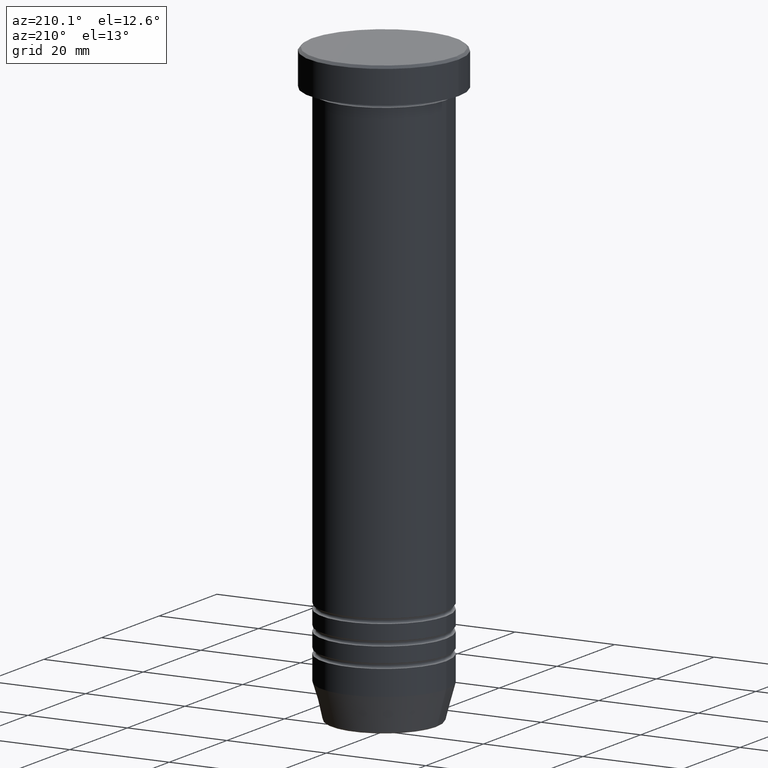
[diagram: clean part render]
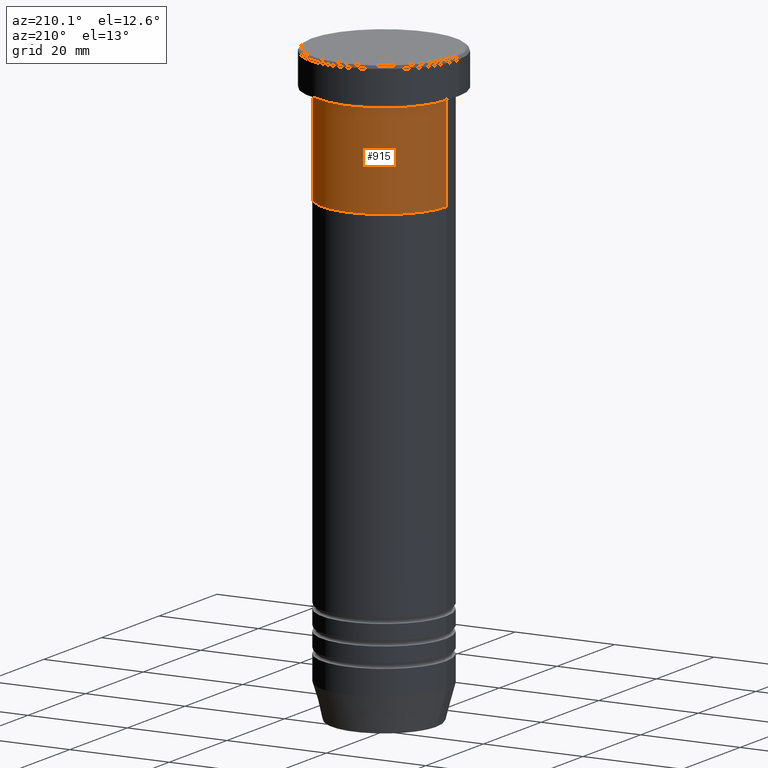
[diagram: same view with one face highlighted and labeled with its STEP entity id]
A machine part, auxiliary view. The second image highlights one B-rep face of the part: STEP entity #915.
In plain terms, the highlighted cylindrical surface (partial cylindrical patch) has radius 12.5 mm, axis along (-0, -0, 1).
Its self-contained STEP definition (entity closure, byte-faithful):
#12 = VECTOR ( 'NONE', #348, 1000.000000000000000 ) ;
#21 = LINE ( 'NONE', #676, #12 ) ;
#25 = CARTESIAN_POINT ( 'NONE',  ( 0.000000000000000000, 0.000000000000000000, -27.00000000000000000 ) ) ;
#51 = DIRECTION ( 'NONE',  ( -0.000000000000000000, -0.000000000000000000, 1.000000000000000000 ) ) ;
#57 = CARTESIAN_POINT ( 'NONE',  ( -12.50000000000000000, 1.530808498934191521E-15, 0.000000000000000000 ) ) ;
#221 = DIRECTION ( 'NONE',  ( 1.000000000000000000, 0.000000000000000000, 0.000000000000000000 ) ) ;
#236 = AXIS2_PLACEMENT_3D ( 'NONE', #773, #284, #939 ) ;
#237 = EDGE_CURVE ( 'NONE', #846, #979, #369, .T. ) ;
#258 = DIRECTION ( 'NONE',  ( -0.000000000000000000, -0.000000000000000000, 1.000000000000000000 ) ) ;
#284 = DIRECTION ( 'NONE',  ( -0.000000000000000000, -0.000000000000000000, 1.000000000000000000 ) ) ;
#308 = CIRCLE ( 'NONE', #970, 12.50000000000000000 ) ;
#332 = CIRCLE ( 'NONE', #934, 12.50000000000000000 ) ;
#338 = DIRECTION ( 'NONE',  ( 1.000000000000000000, 0.000000000000000000, 0.000000000000000000 ) ) ;
#348 = DIRECTION ( 'NONE',  ( -0.000000000000000000, -0.000000000000000000, 1.000000000000000000 ) ) ;
#369 = LINE ( 'NONE', #57, #966 ) ;
#401 = ORIENTED_EDGE ( 'NONE', *, *, #577, .F. ) ;
#458 = EDGE_LOOP ( 'NONE', ( #867, #851, #545, #401 ) ) ;
#545 = ORIENTED_EDGE ( 'NONE', *, *, #987, .F. ) ;
#548 = CYLINDRICAL_SURFACE ( 'NONE', #236, 12.50000000000000000 ) ;
#571 = EDGE_CURVE ( 'NONE', #833, #846, #332, .T. ) ;
#577 = EDGE_CURVE ( 'NONE', #833, #627, #21, .T. ) ;
#627 = VERTEX_POINT ( 'NONE', #824 ) ;
#676 = CARTESIAN_POINT ( 'NONE',  ( 12.50000000000000000, 0.000000000000000000, 0.000000000000000000 ) ) ;
#692 = CARTESIAN_POINT ( 'NONE',  ( -12.50000000000000000, 1.530808498934191521E-15, -8.000000000000000000 ) ) ;
#773 = CARTESIAN_POINT ( 'NONE',  ( 0.000000000000000000, 0.000000000000000000, 0.000000000000000000 ) ) ;
#824 = CARTESIAN_POINT ( 'NONE',  ( 12.50000000000000000, 0.000000000000000000, -8.000000000000000000 ) ) ;
#833 = VERTEX_POINT ( 'NONE', #990 ) ;
#846 = VERTEX_POINT ( 'NONE', #926 ) ;
#850 = FACE_OUTER_BOUND ( 'NONE', #458, .T. ) ;
#851 = ORIENTED_EDGE ( 'NONE', *, *, #237, .T. ) ;
#867 = ORIENTED_EDGE ( 'NONE', *, *, #571, .T. ) ;
#871 = DIRECTION ( 'NONE',  ( -0.000000000000000000, -0.000000000000000000, 1.000000000000000000 ) ) ;
#915 = ADVANCED_FACE ( 'NONE', ( #850 ), #548, .T. ) ;
#926 = CARTESIAN_POINT ( 'NONE',  ( -12.50000000000000000, 1.530808498934191521E-15, -27.00000000000000000 ) ) ;
#934 = AXIS2_PLACEMENT_3D ( 'NONE', #25, #258, #338 ) ;
#939 = DIRECTION ( 'NONE',  ( 1.000000000000000000, 0.000000000000000000, 0.000000000000000000 ) ) ;
#954 = CARTESIAN_POINT ( 'NONE',  ( 0.000000000000000000, 0.000000000000000000, -8.000000000000000000 ) ) ;
#966 = VECTOR ( 'NONE', #51, 1000.000000000000000 ) ;
#970 = AXIS2_PLACEMENT_3D ( 'NONE', #954, #871, #221 ) ;
#979 = VERTEX_POINT ( 'NONE', #692 ) ;
#987 = EDGE_CURVE ( 'NONE', #627, #979, #308, .T. ) ;
#990 = CARTESIAN_POINT ( 'NONE',  ( 12.50000000000000000, 0.000000000000000000, -27.00000000000000000 ) ) ;